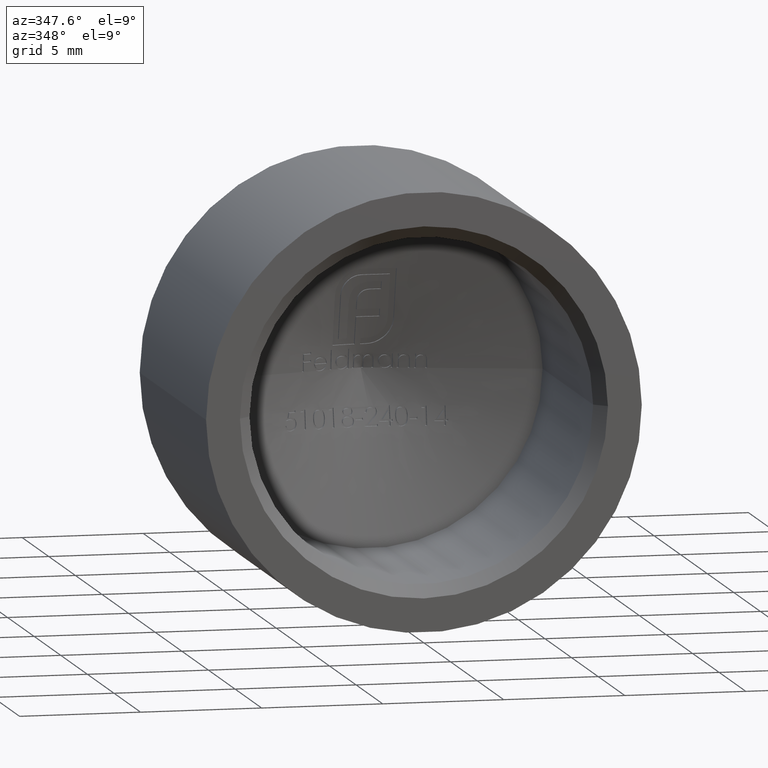
[diagram: clean part render]
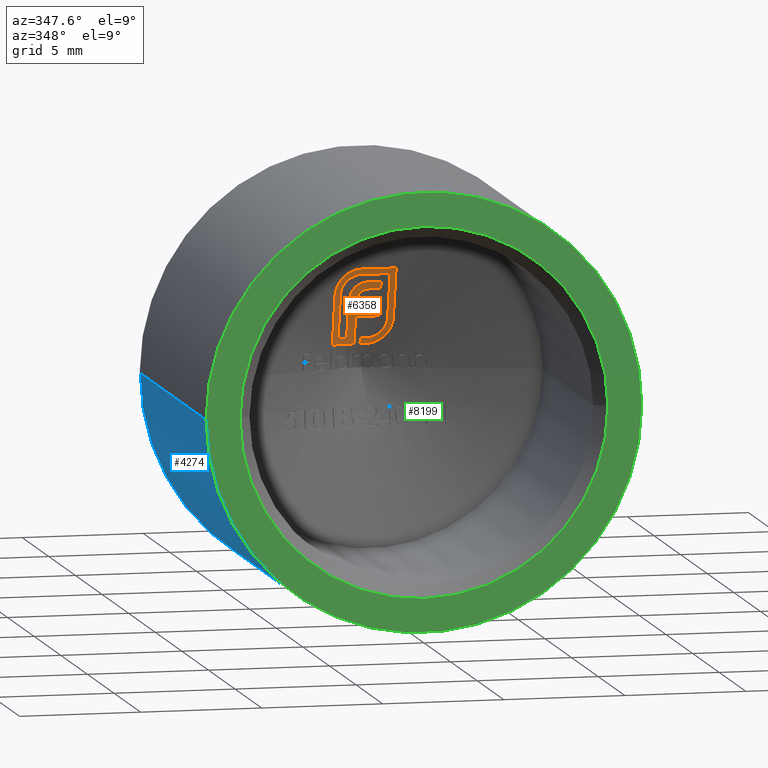
[diagram: same view with three faces highlighted in distinct colors, each labeled with its STEP entity id]
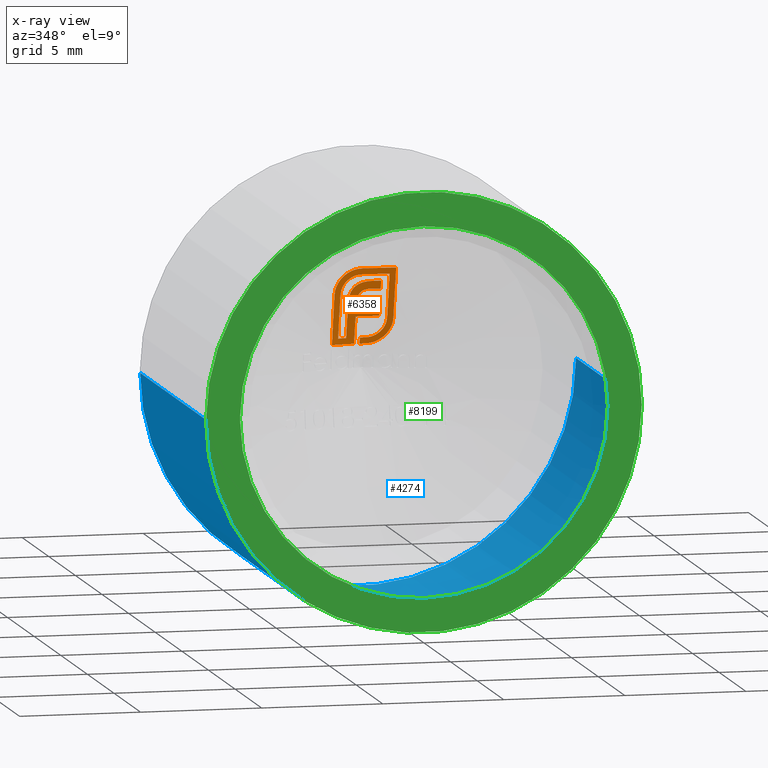
[diagram: x-ray of the same camera — body ghosted, the three highlighted faces saturated]
A machine part, auxiliary view with three faces highlighted in distinct colors.
The next image is the same camera in x-ray (body ghosted, the three faces saturated) — at least one of them is partly hidden behind the body in this view.
Their STEP definitions:

[orange] entity #6358 — the highlighted conical surface has half-angle 75 deg.
#171 = B_SPLINE_CURVE_WITH_KNOTS ( 'NONE', 3,
 ( #3192, #11892, #880, #12803, #12891, #10779, #9701, #4335, #13995, #13903, #3099, #3144, #4149 ),
 .UNSPECIFIED., .F., .F.,
 ( 4, 3, 3, 3, 4 ),
 ( 0.000000000000000000, 7.394270754469971403E-05, 0.0001479491369219821642, 0.0002219066602573538220, 0.0002962628291150000621 ),
 .UNSPECIFIED. ) ;
#200 = CARTESIAN_POINT ( 'NONE',  ( 0.7358328579985032869, 11.55963200449526518, 1.494407766718016894 ) ) ;
#257 = CARTESIAN_POINT ( 'NONE',  ( -0.2780241077777938496, 11.19453533780558452, 3.015514259386824936 ) ) ;
#307 = CARTESIAN_POINT ( 'NONE',  ( -0.2344904513369464039, 11.17090646651796426, 3.107673078830214486 ) ) ;
#456 = CARTESIAN_POINT ( 'NONE',  ( 0.9830367413575101798, 11.07726358621820495, 3.327015815586091829 ) ) ;
#551 = CARTESIAN_POINT ( 'NONE',  ( -0.5409036448911598294, 10.96078487050192152, 3.863343453792511539 ) ) ;
#617 = EDGE_CURVE ( 'NONE', #6517, #13425, #9987, .T. ) ;
#620 = CARTESIAN_POINT ( 'NONE',  ( -1.000328928078029644, 11.11559488663462325, 3.168818495778114031 ) ) ;
#641 = CARTESIAN_POINT ( 'NONE',  ( -1.253355793030608956, 11.27882352922078724, 2.413896320268902329 ) ) ;
#649 = CARTESIAN_POINT ( 'NONE',  ( -1.063250877032375641, 10.96826923492298711, 3.724089635997008596 ) ) ;
#748 = CARTESIAN_POINT ( 'NONE',  ( -0.009631320130870342847, 11.12483853501321107, 3.288401663094821625 ) ) ;
#793 = CARTESIAN_POINT ( 'NONE',  ( 0.2157415709314984553, 11.11367724497087117, 3.323074415565955064 ) ) ;
#797 = CARTESIAN_POINT ( 'NONE',  ( 0.5695736664563785245, 11.61044009762391305, 1.362100794153951355 ) ) ;
#829 = VERTEX_POINT ( 'NONE', #8804 ) ;
#848 = CARTESIAN_POINT ( 'NONE',  ( -0.5833112936472754084, 11.13726389916200077, 3.189270249338582275 ) ) ;
#853 = CARTESIAN_POINT ( 'NONE',  ( -0.07042903317517616724, 11.13147777088820334, 3.262999664591883509 ) ) ;
#880 = CARTESIAN_POINT ( 'NONE',  ( -0.5201401753285617158, 10.88788672903398691, 4.140256207671854760 ) ) ;
#899 = ORIENTED_EDGE ( 'NONE', *, *, #1071, .T. ) ;
#903 = CARTESIAN_POINT ( 'NONE',  ( 1.216546189738427985, 11.40614998829992821, 1.879242214890158413 ) ) ;
#905 = CARTESIAN_POINT ( 'NONE',  ( -0.3126968602489277882, 11.33448107199701838, 2.486433740197681708 ) ) ;
#984 = CARTESIAN_POINT ( 'NONE',  ( -0.4295568778368224483, 11.08168988161551205, 3.422598056918283227 ) ) ;
#1054 = CARTESIAN_POINT ( 'NONE',  ( -1.253355793030609178, 11.10626539894526310, 3.115037900739153098 ) ) ;
#1059 = EDGE_CURVE ( 'NONE', #4690, #3408, #4718, .T. ) ;
#1066 = CARTESIAN_POINT ( 'NONE',  ( -0.6594243849602658969, 11.62687893752128687, 1.251698499420092814 ) ) ;
#1071 = EDGE_CURVE ( 'NONE', #3395, #2424, #5814, .T. ) ;
#1079 = EDGE_CURVE ( 'NONE', #4821, #829, #9102, .T. ) ;
#1092 = EDGE_CURVE ( 'NONE', #12097, #8981, #1530, .T. ) ;
#1093 = CARTESIAN_POINT ( 'NONE',  ( 0.6536455928817447303, 11.40088233175097443, 2.161537207782977088 ) ) ;
#1140 = AXIS2_PLACEMENT_3D ( 'NONE', #2224, #14108, #8799 ) ;
#1168 = CARTESIAN_POINT ( 'NONE',  ( 0.2157415709314984553, 11.11367724497087117, 3.323074415565955064 ) ) ;
#1175 = B_SPLINE_CURVE_WITH_KNOTS ( 'NONE', 3,
 ( #11850, #1966, #2153, #14086, #11761, #3052 ),
 .UNSPECIFIED., .F., .F.,
 ( 4, 2, 4 ),
 ( 0.008814146256615622982, 0.009748831227761014379, 0.01068351619890640404 ),
 .UNSPECIFIED. ) ;
#1287 = CARTESIAN_POINT ( 'NONE',  ( -0.4732188624301019164, 10.88538192048867437, 4.155220474873162928 ) ) ;
#1335 = VERTEX_POINT ( 'NONE', #13023 ) ;
#1336 = CARTESIAN_POINT ( 'NONE',  ( 0.6536455928817419547, 11.06961999182477818, 3.432883064817597418 ) ) ;
#1374 = CARTESIAN_POINT ( 'NONE',  ( 0.6536455928817447303, 11.40088233175097443, 2.161537207782977088 ) ) ;
#1408 = VERTEX_POINT ( 'NONE', #13171 ) ;
#1515 = CARTESIAN_POINT ( 'NONE',  ( 0.6436795122646929990, 11.65968738854438946, 1.120860829148131232 ) ) ;
#1530 = B_SPLINE_CURVE_WITH_KNOTS ( 'NONE', 3,
 ( #2064, #9604, #13904, #7392 ),
 .UNSPECIFIED., .F., .F.,
 ( 4, 4 ),
 ( 0.003612330766010908752, 0.005013608497698937745 ),
 .UNSPECIFIED. ) ;
#1537 = CARTESIAN_POINT ( 'NONE',  ( -1.253355793030609178, 11.10626539894526310, 3.115037900739153098 ) ) ;
#1561 = CARTESIAN_POINT ( 'NONE',  ( 0.6838237292918027954, 11.64903198048279620, 1.143185625945607464 ) ) ;
#1595 = CARTESIAN_POINT ( 'NONE',  ( -0.1695112343033200186, 10.94734729292533970, 3.947183960046360962 ) ) ;
#1596 = B_SPLINE_CURVE_WITH_KNOTS ( 'NONE', 3,
 ( #13064, #5368, #6383, #4319, #14023, #10853, #8608, #1054 ),
 .UNSPECIFIED., .F., .F.,
 ( 4, 2, 2, 4 ),
 ( 0.000000000000000000, 0.0001426175658978912303, 0.0002852351317957824606, 0.0005704702635915649212 ),
 .UNSPECIFIED. ) ;
#1659 = CARTESIAN_POINT ( 'NONE',  ( -0.8950150176004723068, 11.03082380832896447, 3.527745472197443277 ) ) ;
#1677 = CARTESIAN_POINT ( 'NONE',  ( -1.253355793030609400, 11.51686347004377886, 1.355884771059718163 ) ) ;
#1691 = EDGE_CURVE ( 'NONE', #13703, #9571, #12743, .T. ) ;
#1707 = ORIENTED_EDGE ( 'NONE', *, *, #1059, .T. ) ;
#1724 = CARTESIAN_POINT ( 'NONE',  ( -1.253355793030608956, 11.57633638178148772, 1.000000000000000444 ) ) ;
#1777 = CARTESIAN_POINT ( 'NONE',  ( 0.9830367413575117341, 10.91601549010545291, 3.947183960046375617 ) ) ;
#1778 = B_SPLINE_CURVE_WITH_KNOTS ( 'NONE', 3,
 ( #6173, #2580, #2966, #797, #12369, #3682, #13434, #5929, #4786, #4066 ),
 .UNSPECIFIED., .F., .F.,
 ( 4, 2, 2, 2, 4 ),
 ( 0.000000000000000000, 0.0001633988152686584739, 0.0003267976305373169479, 0.0004901964458059753947, 0.0006535952610746338957 ),
 .UNSPECIFIED. ) ;
#1832 = CARTESIAN_POINT ( 'NONE',  ( 0.04523702159074270007, 11.12039478412948057, 3.304690467383331942 ) ) ;
#1897 = CARTESIAN_POINT ( 'NONE',  ( 0.2767399317603446707, 11.02448652352896730, 3.652465564041724289 ) ) ;
#1966 = CARTESIAN_POINT ( 'NONE',  ( -1.001657293610527688, 11.51103557972139768, 1.564163883993461068 ) ) ;
#2064 = CARTESIAN_POINT ( 'NONE',  ( 1.234735240777593113, 10.83324338400742626, 4.198882459466442008 ) ) ;
#2086 = CARTESIAN_POINT ( 'NONE',  ( 0.6536455928817421768, 11.37309675283809973, 2.269871985086451716 ) ) ;
#2092 = CARTESIAN_POINT ( 'NONE',  ( 1.095410779188357608, 11.49589571655640441, 1.556862192788256660 ) ) ;
#2093 = CARTESIAN_POINT ( 'NONE',  ( -1.253355793030609178, 11.10626539894526310, 3.115037900739153098 ) ) ;
#2119 = B_SPLINE_CURVE_WITH_KNOTS ( 'NONE', 3,
 ( #10057, #13198, #4503, #6746 ),
 .UNSPECIFIED., .F., .F.,
 ( 4, 4 ),
 ( 0.003221757652406997789, 0.003657089916898708087 ),
 .UNSPECIFIED. ) ;
#2153 = CARTESIAN_POINT ( 'NONE',  ( -1.001657293610527688, 11.43737628458131717, 1.875185669740780048 ) ) ;
#2207 = ORIENTED_EDGE ( 'NONE', *, *, #12178, .T. ) ;
#2224 = CARTESIAN_POINT ( 'NONE',  ( -4.670729433563786744E-17, 11.99903184888984597, 0.000000000000000000 ) ) ;
#2232 = VERTEX_POINT ( 'NONE', #7391 ) ;
#2269 = CARTESIAN_POINT ( 'NONE',  ( -0.005042777244458447432, 11.73882061120169951, 1.000000000000000000 ) ) ;
#2270 = ORIENTED_EDGE ( 'NONE', *, *, #3642, .T. ) ;
#2274 = CARTESIAN_POINT ( 'NONE',  ( -0.9414907658093416565, 11.64165708409980837, 1.000000000000000000 ) ) ;
#2313 = B_SPLINE_CURVE_WITH_KNOTS ( 'NONE', 3,
 ( #7378, #9826, #14120, #11968, #6430, #11925 ),
 .UNSPECIFIED., .F., .F.,
 ( 4, 2, 4 ),
 ( 0.000000000000000000, 0.0002125381827805550858, 0.0004250763655611101716 ),
 .UNSPECIFIED. ) ;
#2329 = CARTESIAN_POINT ( 'NONE',  ( 1.191073256184313589, 11.43205855722340125, 1.780136930600507039 ) ) ;
#2412 = CARTESIAN_POINT ( 'NONE',  ( 0.6536455928817420657, 11.09848993428822084, 3.323074415565958173 ) ) ;
#2424 = VERTEX_POINT ( 'NONE', #1168 ) ;
#2480 = FACE_OUTER_BOUND ( 'NONE', #9654, .T. ) ;
#2512 = CARTESIAN_POINT ( 'NONE',  ( -0.3020362907366494487, 11.21938806285337442, 2.919976621754199808 ) ) ;
#2527 = CARTESIAN_POINT ( 'NONE',  ( 0.9830367413575127333, 11.23768836549518291, 2.706542056475766067 ) ) ;
#2575 = B_SPLINE_CURVE_WITH_KNOTS ( 'NONE', 3,
 ( #11731, #2269, #3260, #10931 ),
 .UNSPECIFIED., .F., .F.,
 ( 4, 4 ),
 ( 0.0009090622911687312475, 0.001141663783262279047 ),
 .UNSPECIFIED. ) ;
#2580 = CARTESIAN_POINT ( 'NONE',  ( 0.6972140229356443841, 11.57312043525086231, 1.457312302584973462 ) ) ;
#2714 = CARTESIAN_POINT ( 'NONE',  ( 1.234735240777593113, 11.35694442021383210, 2.083844558727288909 ) ) ;
#2750 = CARTESIAN_POINT ( 'NONE',  ( -0.7194767096979467480, 10.98612677247799674, 3.737760433095647095 ) ) ;
#2774 = CARTESIAN_POINT ( 'NONE',  ( -0.8333154875042055876, 11.01099216609587650, 3.618813278708321146 ) ) ;
#2775 = VERTEX_POINT ( 'NONE', #2093 ) ;
#2882 = CARTESIAN_POINT ( 'NONE',  ( -0.6594243849602658969, 11.62687893752128687, 1.251698499420092814 ) ) ;
#2898 = CARTESIAN_POINT ( 'NONE',  ( 0.7610570878540338091, 11.62733342296852612, 1.190729704659291288 ) ) ;
#2913 = CARTESIAN_POINT ( 'NONE',  ( 0.1393186128296175497, 11.11540314063062596, 3.320919855898267326 ) ) ;
#2939 = CARTESIAN_POINT ( 'NONE',  ( 0.1508906820503039259, 11.73498452615122112, 1.000000000000000000 ) ) ;
#2966 = CARTESIAN_POINT ( 'NONE',  ( 0.6572255329088199094, 11.58626003900088186, 1.422091982115506914 ) ) ;
#2981 = CARTESIAN_POINT ( 'NONE',  ( -0.3126968602489276217, 11.25486714959354373, 2.785646752263382986 ) ) ;
#3052 = CARTESIAN_POINT ( 'NONE',  ( -1.001657293610527688, 11.12920459761298630, 3.115037900739153098 ) ) ;
#3078 = CARTESIAN_POINT ( 'NONE',  ( 0.6536455928817421768, 11.34514872029552102, 2.378167764104723414 ) ) ;
#3099 = CARTESIAN_POINT ( 'NONE',  ( -0.6994766181561332674, 10.90219496764668961, 4.059579039689780622 ) ) ;
#3144 = CARTESIAN_POINT ( 'NONE',  ( -0.7205523359809939965, 10.90461486248515932, 4.046716578263177766 ) ) ;
#3168 = CARTESIAN_POINT ( 'NONE',  ( 0.1508906820503039259, 11.66814711659315051, 1.251698499420081268 ) ) ;
#3189 = CARTESIAN_POINT ( 'NONE',  ( 0.9830367413575151758, 11.38859139670818443, 2.083844558727288909 ) ) ;
#3192 = CARTESIAN_POINT ( 'NONE',  ( -0.4732188624301019164, 10.88538192048867437, 4.155220474873162928 ) ) ;
#3219 = VERTEX_POINT ( 'NONE', #13495 ) ;
#3260 = CARTESIAN_POINT ( 'NONE',  ( 0.07313349949342515255, 11.73809314033903206, 1.000000000000000000 ) ) ;
#3296 = ORIENTED_EDGE ( 'NONE', *, *, #14003, .T. ) ;
#3367 = ORIENTED_EDGE ( 'NONE', *, *, #1079, .T. ) ;
#3373 = B_SPLINE_CURVE_WITH_KNOTS ( 'NONE', 3,
 ( #11255, #2274, #8064, #13158 ),
 .UNSPECIFIED., .F., .F.,
 ( 4, 4 ),
 ( 0.001271126619704009272, 0.002226848258252503605 ),
 .UNSPECIFIED. ) ;
#3395 = VERTEX_POINT ( 'NONE', #10746 ) ;
#3408 = VERTEX_POINT ( 'NONE', #4116 ) ;
#3469 = CARTESIAN_POINT ( 'NONE',  ( 0.6536455928817419547, 11.04070037837364282, 3.542679435247237496 ) ) ;
#3528 = CARTESIAN_POINT ( 'NONE',  ( 1.234735240777593113, 10.83324338400742626, 4.198882459466442008 ) ) ;
#3622 = B_SPLINE_CURVE_WITH_KNOTS ( 'NONE', 3,
 ( #9738, #4430, #5380, #13024, #5526, #13124, #6627, #10769 ),
 .UNSPECIFIED., .F., .F.,
 ( 4, 2, 2, 4 ),
 ( 0.000000000000000000, 0.0001743240816599191763, 0.0002614861224898784933, 0.0003486481633198378104 ),
 .UNSPECIFIED. ) ;
#3642 = EDGE_CURVE ( 'NONE', #4273, #3768, #7037, .T. ) ;
#3682 = CARTESIAN_POINT ( 'NONE',  ( 0.4222814163112355024, 11.64157681859232518, 1.293321540432275096 ) ) ;
#3768 = VERTEX_POINT ( 'NONE', #1777 ) ;
#3773 = ORIENTED_EDGE ( 'NONE', *, *, #9480, .T. ) ;
#3791 = CARTESIAN_POINT ( 'NONE',  ( 0.1508906820503039259, 11.73498452615122112, 1.000000000000000000 ) ) ;
#3795 = CARTESIAN_POINT ( 'NONE',  ( -0.9775648025121621565, 11.07681966626903680, 3.327068281234598413 ) ) ;
#3806 = B_SPLINE_CURVE_WITH_KNOTS ( 'NONE', 3,
 ( #1537, #13516, #641, #7099, #1677, #1724 ),
 .UNSPECIFIED., .F., .F.,
 ( 4, 2, 4 ),
 ( 0.007072878041311798925, 0.008155941024482546084, 0.009239004007653293243 ),
 .UNSPECIFIED. ) ;
#3878 = CARTESIAN_POINT ( 'NONE',  ( 1.234735240777593113, 11.35694442021383210, 2.083844558727288909 ) ) ;
#3908 = CARTESIAN_POINT ( 'NONE',  ( 0.9333722334690592870, 11.56922292851153067, 1.336277131181357936 ) ) ;
#3912 = ORIENTED_EDGE ( 'NONE', *, *, #6200, .T. ) ;
#3933 = CARTESIAN_POINT ( 'NONE',  ( -0.7589480263125921722, 10.99391832667734370, 3.699980076687352515 ) ) ;
#3944 = CARTESIAN_POINT ( 'NONE',  ( -0.1876255156817178416, 11.15506987874544720, 3.170075825676205827 ) ) ;
#4010 = CARTESIAN_POINT ( 'NONE',  ( 0.3326131791512554337, 11.33896257387996265, 2.486433740197671938 ) ) ;
#4023 = B_SPLINE_CURVE_WITH_KNOTS ( 'NONE', 3,
 ( #905, #7411, #7458, #2981 ),
 .UNSPECIFIED., .F., .F.,
 ( 4, 4 ),
 ( 0.002575680327349181079, 0.002884701948153508763 ),
 .UNSPECIFIED. ) ;
#4033 = CARTESIAN_POINT ( 'NONE',  ( -0.6594243849602646756, 11.50977869916792606, 1.745660019775298055 ) ) ;
#4066 = CARTESIAN_POINT ( 'NONE',  ( 0.1508906820503039259, 11.66814711659315051, 1.251698499420081268 ) ) ;
#4081 = CARTESIAN_POINT ( 'NONE',  ( -0.6594243849602641205, 11.25365152987183315, 2.729143007495610007 ) ) ;
#4097 = CARTESIAN_POINT ( 'NONE',  ( 0.9643195275555330737, 11.55720442046794538, 1.369329345848671275 ) ) ;
#4099 = EDGE_CURVE ( 'NONE', #9669, #4690, #6849, .T. ) ;
#4116 = CARTESIAN_POINT ( 'NONE',  ( -0.3126968602489277882, 11.33448107199701838, 2.486433740197681708 ) ) ;
#4149 = CARTESIAN_POINT ( 'NONE',  ( -0.7416116500770253417, 10.90698113677847836, 4.033865841224195670 ) ) ;
#4218 = B_SPLINE_CURVE_WITH_KNOTS ( 'NONE', 3,
 ( #3189, #8622, #5252, #12979, #5335, #13942, #10724, #5205, #8481, #6485 ),
 .UNSPECIFIED., .F., .F.,
 ( 4, 2, 2, 2, 4 ),
 ( 4.848699518061080308E-19, 0.0001678954194340044192, 0.0003357908388680083504, 0.0005036862583020122004, 0.0006715816777360161588 ),
 .UNSPECIFIED. ) ;
#4234 = EDGE_CURVE ( 'NONE', #11062, #9159, #3373, .T. ) ;
#4273 = VERTEX_POINT ( 'NONE', #10243 ) ;
#4276 = CARTESIAN_POINT ( 'NONE',  ( 1.159559791715489174, 11.45727515158493404, 1.687826448441899219 ) ) ;
#4287 = VERTEX_POINT ( 'NONE', #9322 ) ;
#4307 = B_SPLINE_CURVE_WITH_KNOTS ( 'NONE', 3,
 ( #11798, #11615, #10639, #10727 ),
 .UNSPECIFIED., .F., .F.,
 ( 4, 4 ),
 ( 0.001361088703140514444, 0.001704217927187385087 ),
 .UNSPECIFIED. ) ;
#4319 = CARTESIAN_POINT ( 'NONE',  ( -1.191503295552242658, 11.02041565327468398, 3.479926773889134850 ) ) ;
#4330 = EDGE_CURVE ( 'NONE', #9571, #12097, #10946, .T. ) ;
#4335 = CARTESIAN_POINT ( 'NONE',  ( -0.6338375515431503571, 10.89609434362156293, 4.093385939494098125 ) ) ;
#4392 = VERTEX_POINT ( 'NONE', #9465 ) ;
#4421 = CARTESIAN_POINT ( 'NONE',  ( -0.2208835631891407358, 10.87963170589815576, 4.198046951746182920 ) ) ;
#4430 = CARTESIAN_POINT ( 'NONE',  ( -0.1897638096798709428, 11.04615878960618502, 3.577454333714891188 ) ) ;
#4498 = ORIENTED_EDGE ( 'NONE', *, *, #5370, .T. ) ;
#4503 = CARTESIAN_POINT ( 'NONE',  ( 0.5078777310586095606, 11.10602823439261044, 3.323074415565955952 ) ) ;
#4520 = CARTESIAN_POINT ( 'NONE',  ( -0.3739584251523249137, 10.88135714502183049, 4.180722125328592220 ) ) ;
#4609 = CARTESIAN_POINT ( 'NONE',  ( -1.253355793030608956, 11.57633638178148772, 1.000000000000000444 ) ) ;
#4634 = EDGE_CURVE ( 'NONE', #3768, #12589, #5575, .T. ) ;
#4668 = CARTESIAN_POINT ( 'NONE',  ( -0.2780241077777938496, 11.19453533780558452, 3.015514259386824936 ) ) ;
#4690 = VERTEX_POINT ( 'NONE', #6875 ) ;
#4709 = ORIENTED_EDGE ( 'NONE', *, *, #6968, .T. ) ;
#4711 = CARTESIAN_POINT ( 'NONE',  ( 0.07310270934407334109, 11.67064168099614641, 1.251698499420082156 ) ) ;
#4717 = CARTESIAN_POINT ( 'NONE',  ( -0.2128619613932888899, 11.16274412912283687, 3.139742843415217255 ) ) ;
#4718 = B_SPLINE_CURVE_WITH_KNOTS ( 'NONE', 3,
 ( #10553, #4010, #12714, #13763 ),
 .UNSPECIFIED., .F., .F.,
 ( 4, 4 ),
 ( 0.002062015219854618393, 0.003025843354104204141 ),
 .UNSPECIFIED. ) ;
#4724 = ORIENTED_EDGE ( 'NONE', *, *, #12512, .T. ) ;
#4786 = CARTESIAN_POINT ( 'NONE',  ( 0.2063026337284232237, 11.66600602834832223, 1.253067159001559405 ) ) ;
#4796 = CARTESIAN_POINT ( 'NONE',  ( 0.2454784319189337594, 11.73096279831533906, 1.000906786646812652 ) ) ;
#4805 = CARTESIAN_POINT ( 'NONE',  ( -0.08282935312548596329, 11.73710010326084330, 1.000000000000000000 ) ) ;
#4821 = VERTEX_POINT ( 'NONE', #5206 ) ;
#4839 = CARTESIAN_POINT ( 'NONE',  ( 0.6032635652166027374, 11.67012618081975361, 1.099034054454452791 ) ) ;
#4843 = CARTESIAN_POINT ( 'NONE',  ( -1.001657293610527688, 11.12920459761298630, 3.115037900739153098 ) ) ;
#4877 = CARTESIAN_POINT ( 'NONE',  ( 0.2141195928836897022, 10.95175768259643867, 3.947183960046355633 ) ) ;
#4937 = B_SPLINE_CURVE_WITH_KNOTS ( 'NONE', 3,
 ( #13662, #9351, #2898, #10636, #10488, #3908, #4097, #13798, #6205, #5007 ),
 .UNSPECIFIED., .F., .F.,
 ( 4, 2, 2, 2, 4 ),
 ( 0.000000000000000000, 0.0001396142354396738691, 0.0002792284708793477382, 0.0004188427063190216073, 0.0005584569417586954763 ),
 .UNSPECIFIED. ) ;
#4975 = CARTESIAN_POINT ( 'NONE',  ( -0.4295568778368224483, 11.08168988161551205, 3.422598056918283227 ) ) ;
#5007 = CARTESIAN_POINT ( 'NONE',  ( 1.069718622535345887, 11.50889901795718728, 1.515596671005931873 ) ) ;
#5013 = CARTESIAN_POINT ( 'NONE',  ( -0.7791248126306461463, 10.91178977926166205, 4.008722319650259713 ) ) ;
#5069 = B_SPLINE_CURVE_WITH_KNOTS ( 'NONE', 3,
 ( #257, #10168, #6821, #6955, #307, #9151, #4717, #5905, #3944, #12453 ),
 .UNSPECIFIED., .F., .F.,
 ( 4, 3, 3, 4 ),
 ( 0.000000000000000000, 8.496147484592449131E-05, 0.0001439515570902233084, 0.0002040288892915694257 ),
 .UNSPECIFIED. ) ;
#5084 = ORIENTED_EDGE ( 'NONE', *, *, #12702, .T. ) ;
#5093 = CARTESIAN_POINT ( 'NONE',  ( 0.6536455928817419547, 11.01174331917845173, 3.652465564041724289 ) ) ;
#5118 = CARTESIAN_POINT ( 'NONE',  ( -1.010547422800207373, 10.95328357540009279, 3.796636825714021946 ) ) ;
#5124 = CARTESIAN_POINT ( 'NONE',  ( 0.1776078098827213458, 11.11448563490041153, 3.322526842631909894 ) ) ;
#5144 = CARTESIAN_POINT ( 'NONE',  ( 0.5281485726114224510, 11.01766706757288183, 3.652465564041724289 ) ) ;
#5158 = CARTESIAN_POINT ( 'NONE',  ( -0.2794471925631212827, 10.94701359479049074, 3.942552707545178059 ) ) ;
#5177 = CARTESIAN_POINT ( 'NONE',  ( -0.08282935312548586615, 11.66984175436771842, 1.251698499420079713 ) ) ;
#5184 = EDGE_CURVE ( 'NONE', #1335, #9943, #7839, .T. ) ;
#5198 = EDGE_CURVE ( 'NONE', #5945, #8554, #12205, .T. ) ;
#5205 = CARTESIAN_POINT ( 'NONE',  ( 0.8104445601505764207, 11.53127292150096217, 1.575350805202567539 ) ) ;
#5206 = CARTESIAN_POINT ( 'NONE',  ( -0.7416116500770253417, 10.90698113677847836, 4.033865841224195670 ) ) ;
#5252 = CARTESIAN_POINT ( 'NONE',  ( 0.9783879206376983051, 11.41561590353643751, 1.974121132067615303 ) ) ;
#5311 = CARTESIAN_POINT ( 'NONE',  ( -0.6029206401924908088, 11.15006066858829037, 3.136868893035792638 ) ) ;
#5335 = CARTESIAN_POINT ( 'NONE',  ( 0.9423001769583337905, 11.45787354071364028, 1.815547615487367539 ) ) ;
#5351 = CARTESIAN_POINT ( 'NONE',  ( -0.5028243111960097877, 11.10169954403443882, 3.337163526508284406 ) ) ;
#5368 = CARTESIAN_POINT ( 'NONE',  ( -1.132934448651457204, 10.99295176482608127, 3.607036454020406957 ) ) ;
#5370 = EDGE_CURVE ( 'NONE', #6596, #7398, #5757, .T. ) ;
#5380 = CARTESIAN_POINT ( 'NONE',  ( -0.2437205971987776720, 11.05102623137048568, 3.555925877334397356 ) ) ;
#5391 = ORIENTED_EDGE ( 'NONE', *, *, #9205, .T. ) ;
#5517 = CARTESIAN_POINT ( 'NONE',  ( -0.3126968602489311744, 11.42075563887443579, 2.161537207782977088 ) ) ;
#5521 = CARTESIAN_POINT ( 'NONE',  ( -0.2722504242548106079, 10.87954333535072671, 4.195358173075553587 ) ) ;
#5526 = CARTESIAN_POINT ( 'NONE',  ( -0.3427629742975554228, 11.06452460751332545, 3.496835373091423449 ) ) ;
#5575 = B_SPLINE_CURVE_WITH_KNOTS ( 'NONE', 3,
 ( #5917, #456, #2527, #13424 ),
 .UNSPECIFIED., .F., .F.,
 ( 4, 4 ),
 ( 0.01299314604642829406, 0.01491551843992628204 ),
 .UNSPECIFIED. ) ;
#5636 = ORIENTED_EDGE ( 'NONE', *, *, #7090, .T. ) ;
#5676 = CARTESIAN_POINT ( 'NONE',  ( -0.2903744545921533304, 11.20428995722362053, 2.977781382754815187 ) ) ;
#5757 = B_SPLINE_CURVE_WITH_KNOTS ( 'NONE', 3,
 ( #8903, #9821, #13010, #11918 ),
 .UNSPECIFIED., .F., .F.,
 ( 4, 4 ),
 ( 0.0009594571082551295099, 0.001219987110466942302 ),
 .UNSPECIFIED. ) ;
#5814 = B_SPLINE_CURVE_WITH_KNOTS ( 'NONE', 3,
 ( #748, #13813, #7300, #1832, #9458, #7247, #11628, #2913, #5124, #793 ),
 .UNSPECIFIED., .F., .F.,
 ( 4, 3, 3, 4 ),
 ( 0.000000000000000000, 5.740737749057825981E-05, 0.0001149061396178375420, 0.0002296373589773763996 ),
 .UNSPECIFIED. ) ;
#5887 = CARTESIAN_POINT ( 'NONE',  ( -0.6029206401924908088, 11.15006066858829037, 3.136868893035792638 ) ) ;
#5905 = CARTESIAN_POINT ( 'NONE',  ( -0.2012293303742087314, 11.15871281592192865, 3.155611090936484953 ) ) ;
#5917 = CARTESIAN_POINT ( 'NONE',  ( 0.9830367413575117341, 10.91601549010545291, 3.947183960046375617 ) ) ;
#5929 = CARTESIAN_POINT ( 'NONE',  ( 0.2613811837088988455, 11.66228214939819630, 1.256735633952411835 ) ) ;
#5934 = CARTESIAN_POINT ( 'NONE',  ( 1.234735240777593113, 11.19381735056456151, 2.791489715243841818 ) ) ;
#5944 = CARTESIAN_POINT ( 'NONE',  ( -0.9628009550952341122, 11.06466675777944886, 3.378633631224089218 ) ) ;
#5945 = VERTEX_POINT ( 'NONE', #12445 ) ;
#5975 = ORIENTED_EDGE ( 'NONE', *, *, #1092, .T. ) ;
#5988 = CARTESIAN_POINT ( 'NONE',  ( -0.9969534570003881768, 11.10220755673439719, 3.222261664027819439 ) ) ;
#6007 = CARTESIAN_POINT ( 'NONE',  ( -0.7589480263125921722, 10.99391832667734370, 3.699980076687352515 ) ) ;
#6011 = CARTESIAN_POINT ( 'NONE',  ( -0.3871638123832211176, 10.95013781600105141, 3.921720599648663264 ) ) ;
#6021 = CARTESIAN_POINT ( 'NONE',  ( 0.5999158856444375409, 10.94082415071121339, 3.947183960046366291 ) ) ;
#6038 = CARTESIAN_POINT ( 'NONE',  ( 1.191073256184313589, 11.43205855722340125, 1.780136930600507039 ) ) ;
#6062 = VERTEX_POINT ( 'NONE', #9144 ) ;
#6150 = VERTEX_POINT ( 'NONE', #12538 ) ;
#6159 = VERTEX_POINT ( 'NONE', #9431 ) ;
#6173 = CARTESIAN_POINT ( 'NONE',  ( 0.7358328579985032869, 11.55963200449526518, 1.494407766718016894 ) ) ;
#6200 = EDGE_CURVE ( 'NONE', #3408, #1408, #4023, .T. ) ;
#6205 = CARTESIAN_POINT ( 'NONE',  ( 1.044926931108844714, 11.52097962016032540, 1.477910494715697576 ) ) ;
#6273 = CARTESIAN_POINT ( 'NONE',  ( -0.4489703813316964776, 11.08649265394668681, 3.402096736423489087 ) ) ;
#6358 = ADVANCED_FACE ( 'NONE', ( #2480 ), #12336, .F. ) ;
#6362 = VERTEX_POINT ( 'NONE', #3168 ) ;
#6383 = CARTESIAN_POINT ( 'NONE',  ( -1.155132525128590659, 11.00165633408423105, 3.565831961019515273 ) ) ;
#6400 = ORIENTED_EDGE ( 'NONE', *, *, #4634, .T. ) ;
#6430 = CARTESIAN_POINT ( 'NONE',  ( -0.6579740865144871886, 11.23582321477269907, 2.797944312182824245 ) ) ;
#6462 = CARTESIAN_POINT ( 'NONE',  ( -0.1502676403498377500, 11.14585363008404073, 3.206564011650680612 ) ) ;
#6477 = CARTESIAN_POINT ( 'NONE',  ( 0.9830367413575151758, 11.38859139670818443, 2.083844558727288909 ) ) ;
#6485 = CARTESIAN_POINT ( 'NONE',  ( 0.7358328579985032869, 11.55963200449526518, 1.494407766718016894 ) ) ;
#6517 = VERTEX_POINT ( 'NONE', #8300 ) ;
#6555 = CARTESIAN_POINT ( 'NONE',  ( 0.1374070034602783152, 11.02769944559267579, 3.649007417120962771 ) ) ;
#6596 = VERTEX_POINT ( 'NONE', #5177 ) ;
#6624 = EDGE_CURVE ( 'NONE', #7750, #9043, #9517, .T. ) ;
#6627 = CARTESIAN_POINT ( 'NONE',  ( -0.4087168994734112215, 11.07716718993841454, 3.442224933150935140 ) ) ;
#6656 = CARTESIAN_POINT ( 'NONE',  ( -0.0005602505790655533044, 11.03320029914861244, 3.630572868164524625 ) ) ;
#6673 = CARTESIAN_POINT ( 'NONE',  ( 0.6536455928817419547, 11.01174331917845173, 3.652465564041724289 ) ) ;
#6746 = CARTESIAN_POINT ( 'NONE',  ( 0.6536455928817420657, 11.09848993428822084, 3.323074415565958173 ) ) ;
#6821 = CARTESIAN_POINT ( 'NONE',  ( -0.2581252217953438066, 11.18124350451595994, 3.067107278088160083 ) ) ;
#6849 = B_SPLINE_CURVE_WITH_KNOTS ( 'NONE', 3,
 ( #1093, #2086, #3078, #10755 ),
 .UNSPECIFIED., .F., .F.,
 ( 4, 4 ),
 ( 0.002248729865330446279, 0.002583443778888270658 ),
 .UNSPECIFIED. ) ;
#6875 = CARTESIAN_POINT ( 'NONE',  ( 0.6536455928817421768, 11.31709221494051931, 2.486433740197674602 ) ) ;
#6939 = CARTESIAN_POINT ( 'NONE',  ( 0.5186430678208878708, 11.68915671471756390, 1.062929801685801090 ) ) ;
#6955 = CARTESIAN_POINT ( 'NONE',  ( -0.2442017237169123445, 11.17515384398995337, 3.091005028636498952 ) ) ;
#6968 = EDGE_CURVE ( 'NONE', #3219, #4287, #4937, .T. ) ;
#6976 = ORIENTED_EDGE ( 'NONE', *, *, #5184, .T. ) ;
#7037 = B_SPLINE_CURVE_WITH_KNOTS ( 'NONE', 3,
 ( #1595, #4877, #6021, #12188 ),
 .UNSPECIFIED., .F., .F.,
 ( 4, 4 ),
 ( 0.003500316867217303021, 0.004647467028699450546 ),
 .UNSPECIFIED. ) ;
#7066 = B_SPLINE_CURVE_WITH_KNOTS ( 'NONE', 3,
 ( #11137, #4711, #12299, #13406 ),
 .UNSPECIFIED., .F., .F.,
 ( 4, 4 ),
 ( 0.001164120853223507080, 0.001396769703678493908 ),
 .UNSPECIFIED. ) ;
#7090 = EDGE_CURVE ( 'NONE', #12589, #8928, #4218, .T. ) ;
#7096 = B_SPLINE_CURVE_WITH_KNOTS ( 'NONE', 3,
 ( #13528, #8049, #10414, #7150 ),
 .UNSPECIFIED., .F., .F.,
 ( 4, 4 ),
 ( 0.006882958711669932839, 0.008063441616120962593 ),
 .UNSPECIFIED. ) ;
#7099 = CARTESIAN_POINT ( 'NONE',  ( -1.253355793030608734, 11.44002240009523241, 1.709865748385915207 ) ) ;
#7150 = CARTESIAN_POINT ( 'NONE',  ( -0.3126968602489311744, 11.42075563887443579, 2.161537207782977088 ) ) ;
#7151 = CARTESIAN_POINT ( 'NONE',  ( -0.9814413214049090284, 10.94641768226348333, 3.830747335202656867 ) ) ;
#7184 = ORIENTED_EDGE ( 'NONE', *, *, #8286, .T. ) ;
#7247 = CARTESIAN_POINT ( 'NONE',  ( 0.08267502360772500947, 11.11808069915250563, 3.312658425074042956 ) ) ;
#7289 = EDGE_CURVE ( 'NONE', #1408, #11083, #7780, .T. ) ;
#7288 = ORIENTED_EDGE ( 'NONE', *, *, #10316, .T. ) ;
#7295 = CARTESIAN_POINT ( 'NONE',  ( -1.086700528453681258, 10.97630780242064752, 3.686035449395637098 ) ) ;
#7300 = CARTESIAN_POINT ( 'NONE',  ( 0.02670028432261756235, 11.12168752843782293, 3.300119172371127174 ) ) ;
#7337 = ORIENTED_EDGE ( 'NONE', *, *, #9222, .T. ) ;
#7353 = CARTESIAN_POINT ( 'NONE',  ( -0.5180653295023964766, 11.10737746000083526, 3.313373202854775545 ) ) ;
#7378 = CARTESIAN_POINT ( 'NONE',  ( -0.6029206401924908088, 11.15006066858829037, 3.136868893035792638 ) ) ;
#7391 = CARTESIAN_POINT ( 'NONE',  ( -0.3126968602489311744, 11.42075563887443579, 2.161537207782977088 ) ) ;
#7392 = CARTESIAN_POINT ( 'NONE',  ( -0.1695112343033200186, 10.87996326997864394, 4.198882459466442008 ) ) ;
#7398 = VERTEX_POINT ( 'NONE', #4805 ) ;
#7411 = CARTESIAN_POINT ( 'NONE',  ( -0.3126968602489276217, 11.30796384478543359, 2.586176907627777410 ) ) ;
#7458 = CARTESIAN_POINT ( 'NONE',  ( -0.3126968602489276217, 11.28142366717152356, 2.685914004342571992 ) ) ;
#7646 = EDGE_CURVE ( 'NONE', #2232, #9669, #8694, .T. ) ;
#7683 = CARTESIAN_POINT ( 'NONE',  ( -0.06829200100363663761, 11.03696962703492090, 3.615861354376488368 ) ) ;
#7750 = VERTEX_POINT ( 'NONE', #4975 ) ;
#7780 = B_SPLINE_CURVE_WITH_KNOTS ( 'NONE', 3,
 ( #11094, #10081, #7942, #12162, #2512, #13356, #11224, #5676, #11183, #4668 ),
 .UNSPECIFIED., .F., .F.,
 ( 4, 3, 3, 4 ),
 ( 4.370558682921689079E-19, 0.0001191630767624397451, 0.0001797080172605640392, 0.0002408446686324423956 ),
 .UNSPECIFIED. ) ;
#7794 = CARTESIAN_POINT ( 'NONE',  ( -0.4237933622128514655, 10.88324195241975190, 4.168887411224865502 ) ) ;
#7839 = B_SPLINE_CURVE_WITH_KNOTS ( 'NONE', 3,
 ( #5093, #5144, #12734, #1897 ),
 .UNSPECIFIED., .F., .F.,
 ( 4, 4 ),
 ( 0.003568080212038470065, 0.003943573125003763981 ),
 .UNSPECIFIED. ) ;
#7942 = CARTESIAN_POINT ( 'NONE',  ( -0.3103267809847587433, 11.23445927547010648, 2.862549058283631709 ) ) ;
#7974 = CARTESIAN_POINT ( 'NONE',  ( -0.1695112343033200186, 10.87996326997864394, 4.198882459466442008 ) ) ;
#7990 = EDGE_CURVE ( 'NONE', #2424, #6062, #2119, .T. ) ;
#8049 = CARTESIAN_POINT ( 'NONE',  ( -0.3126968602489285098, 11.62607080281977190, 1.387711196307365391 ) ) ;
#8064 = CARTESIAN_POINT ( 'NONE',  ( -0.6279261076754373283, 11.70001483104731754, 1.000000000000000000 ) ) ;
#8171 = CARTESIAN_POINT ( 'NONE',  ( -0.9210552588728485590, 11.04151396453863043, 3.479708215574675467 ) ) ;
#8174 = ORIENTED_EDGE ( 'NONE', *, *, #10670, .T. ) ;
#8286 = EDGE_CURVE ( 'NONE', #8554, #6159, #4307, .T. ) ;
#8300 = CARTESIAN_POINT ( 'NONE',  ( -1.001657293610527688, 11.12920459761298630, 3.115037900739153098 ) ) ;
#8341 = B_SPLINE_CURVE_WITH_KNOTS ( 'NONE', 3,
 ( #13164, #4421, #5521, #4520, #7794, #1287 ),
 .UNSPECIFIED., .F., .F.,
 ( 4, 2, 4 ),
 ( 2.710505431213760784E-20, 0.0001541193170437493330, 0.0003082386340874986117 ),
 .UNSPECIFIED. ) ;
#8365 = ORIENTED_EDGE ( 'NONE', *, *, #10449, .T. ) ;
#8401 = CARTESIAN_POINT ( 'NONE',  ( -0.4683792013971271317, 11.09124133466838913, 3.381578849250580276 ) ) ;
#8481 = CARTESIAN_POINT ( 'NONE',  ( 0.7739515837157097122, 11.54554666162492715, 1.534232597258798902 ) ) ;
#8510 = CARTESIAN_POINT ( 'NONE',  ( 1.231189698138154931, 11.38104161952213467, 1.980913402551060631 ) ) ;
#8554 = VERTEX_POINT ( 'NONE', #1066 ) ;
#8593 = CARTESIAN_POINT ( 'NONE',  ( -0.5611717183409661303, 11.12469458754587492, 3.240925832666320172 ) ) ;
#8608 = CARTESIAN_POINT ( 'NONE',  ( -1.252466526799294044, 11.08329582463694329, 3.207798079938940283 ) ) ;
#8622 = CARTESIAN_POINT ( 'NONE',  ( 0.9816080226101618900, 11.40209230163040210, 2.028807406421485826 ) ) ;
#8647 = CARTESIAN_POINT ( 'NONE',  ( -0.04020839864485031140, 11.12807211421885967, 3.276244172982082592 ) ) ;
#8694 = B_SPLINE_CURVE_WITH_KNOTS ( 'NONE', 3,
 ( #5517, #8941, #12148, #1374 ),
 .UNSPECIFIED., .F., .F.,
 ( 4, 4 ),
 ( 0.001743968120237803258, 0.002706937957365497614 ),
 .UNSPECIFIED. ) ;
#8740 = EDGE_CURVE ( 'NONE', #9043, #5945, #2313, .T. ) ;
#8794 = CARTESIAN_POINT ( 'NONE',  ( -0.1348384818321863299, 11.04175467250668241, 3.595961819273951310 ) ) ;
#8799 = DIRECTION ( 'NONE',  ( 1.000000000000000000, 0.000000000000000000, 0.000000000000000000 ) ) ;
#8804 = CARTESIAN_POINT ( 'NONE',  ( -1.110170167085001491, 10.98423442149373130, 3.647970947980651690 ) ) ;
#8812 = EDGE_CURVE ( 'NONE', #6062, #1335, #12318, .T. ) ;
#8903 = CARTESIAN_POINT ( 'NONE',  ( -0.08282935312548586615, 11.66984175436771842, 1.251698499420079713 ) ) ;
#8928 = VERTEX_POINT ( 'NONE', #200 ) ;
#8941 = CARTESIAN_POINT ( 'NONE',  ( 0.008619911083178919547, 11.43308240502100226, 2.161537207782977088 ) ) ;
#8952 = ORIENTED_EDGE ( 'NONE', *, *, #7990, .T. ) ;
#8981 = VERTEX_POINT ( 'NONE', #7974 ) ;
#8989 = ORIENTED_EDGE ( 'NONE', *, *, #7646, .T. ) ;
#9010 = EDGE_CURVE ( 'NONE', #12515, #3219, #13427, .T. ) ;
#9043 = VERTEX_POINT ( 'NONE', #5887 ) ;
#9102 = B_SPLINE_CURVE_WITH_KNOTS ( 'NONE', 3,
 ( #10498, #5013, #9548, #13806, #11620, #7151, #5118, #649, #7295, #12613 ),
 .UNSPECIFIED., .F., .F.,
 ( 4, 2, 2, 2, 4 ),
 ( 0.000000000000000000, 0.0001361915793809677334, 0.0002723831587619354668, 0.0004085747381429032273, 0.0005447663175238709335 ),
 .UNSPECIFIED. ) ;
#9144 = CARTESIAN_POINT ( 'NONE',  ( 0.6536455928817420657, 11.09848993428822084, 3.323074415565958173 ) ) ;
#9151 = CARTESIAN_POINT ( 'NONE',  ( -0.2243027049470372458, 11.16670894331154251, 3.124136352481183376 ) ) ;
#9159 = VERTEX_POINT ( 'NONE', #13963 ) ;
#9205 = EDGE_CURVE ( 'NONE', #4392, #3395, #12418, .T. ) ;
#9207 = CARTESIAN_POINT ( 'NONE',  ( -0.7589480263125921722, 10.99391832667734370, 3.699980076687352515 ) ) ;
#9222 = EDGE_CURVE ( 'NONE', #7398, #12515, #2575, .T. ) ;
#9306 = EDGE_CURVE ( 'NONE', #9943, #6150, #10181, .T. ) ;
#9322 = CARTESIAN_POINT ( 'NONE',  ( 1.069718622535345887, 11.50889901795718728, 1.515596671005931873 ) ) ;
#9351 = CARTESIAN_POINT ( 'NONE',  ( 0.7224561011028622914, 11.63825017114951166, 1.166964460215098587 ) ) ;
#9429 = CARTESIAN_POINT ( 'NONE',  ( 1.234735240777593113, 11.35694442021383210, 2.083844558727288909 ) ) ;
#9431 = CARTESIAN_POINT ( 'NONE',  ( -1.001657293610527688, 11.57640609660256636, 1.251698499420083044 ) ) ;
#9458 = CARTESIAN_POINT ( 'NONE',  ( 0.06379644328199632342, 11.11910045781895029, 3.309267356540223748 ) ) ;
#9465 = CARTESIAN_POINT ( 'NONE',  ( -0.1740058503643929222, 11.15144100275079531, 3.184383405681419976 ) ) ;
#9480 = EDGE_CURVE ( 'NONE', #9159, #2232, #7096, .T. ) ;
#9517 = B_SPLINE_CURVE_WITH_KNOTS ( 'NONE', 3,
 ( #984, #6273, #8401, #5351, #7353, #8593, #848, #5311 ),
 .UNSPECIFIED., .F., .F.,
 ( 4, 2, 2, 4 ),
 ( 0.000000000000000000, 8.571902639245237532E-05, 0.0001714380527849047506, 0.0003428761055698084171 ),
 .UNSPECIFIED. ) ;
#9530 = CARTESIAN_POINT ( 'NONE',  ( 1.069718622535345887, 11.50889901795718728, 1.515596671005931873 ) ) ;
#9548 = CARTESIAN_POINT ( 'NONE',  ( -0.8166620508083327623, 10.91642730209238543, 3.983567906984023743 ) ) ;
#9566 = CARTESIAN_POINT ( 'NONE',  ( -0.1257985735195423782, 11.14042389391774535, 3.227923144725978855 ) ) ;
#9571 = VERTEX_POINT ( 'NONE', #2714 ) ;
#9591 = CARTESIAN_POINT ( 'NONE',  ( -0.1695112343033200186, 10.94734729292533970, 3.947183960046360962 ) ) ;
#9604 = CARTESIAN_POINT ( 'NONE',  ( 0.7681807713667511139, 10.86851176101246530, 4.198882459466442008 ) ) ;
#9654 = EDGE_LOOP ( 'NONE', ( #5975, #5084, #3296, #3367, #12069, #7288, #13280, #3773, #8989, #12244, #1707, #3912, #13965, #2207, #5391, #899, #8952, #9736, #6976, #10165, #8174, #13363, #10953, #9968, #7184, #10751, #12177, #8365, #2270, #6400, #5636, #11682, #13308, #4498, #7337, #9849, #4709, #4724, #11511, #13761 ) ) ;
#9669 = VERTEX_POINT ( 'NONE', #10688 ) ;
#9701 = CARTESIAN_POINT ( 'NONE',  ( -0.6114056837230910091, 10.89431627447698858, 4.103437352037307306 ) ) ;
#9736 = ORIENTED_EDGE ( 'NONE', *, *, #8812, .T. ) ;
#9738 = CARTESIAN_POINT ( 'NONE',  ( -0.1348384818321863299, 11.04175467250668241, 3.595961819273951310 ) ) ;
#9765 = CARTESIAN_POINT ( 'NONE',  ( -0.009631320130870342847, 11.12483853501321107, 3.288401663094821625 ) ) ;
#9821 = CARTESIAN_POINT ( 'NONE',  ( -0.08282935312548582452, 11.69227268827391875, 1.167802026655115455 ) ) ;
#9822 = CARTESIAN_POINT ( 'NONE',  ( 1.176120197217844110, 11.44462400345329911, 1.733718111437154485 ) ) ;
#9826 = CARTESIAN_POINT ( 'NONE',  ( -0.6219992702045834543, 11.16655535240971808, 3.070516131458594700 ) ) ;
#9849 = ORIENTED_EDGE ( 'NONE', *, *, #9010, .T. ) ;
#9943 = VERTEX_POINT ( 'NONE', #12498 ) ;
#9968 = ORIENTED_EDGE ( 'NONE', *, *, #5198, .T. ) ;
#9987 = B_SPLINE_CURVE_WITH_KNOTS ( 'NONE', 3,
 ( #4843, #620, #5988, #3795, #5944, #8171, #1659, #2774, #11362, #3933 ),
 .UNSPECIFIED., .F., .F.,
 ( 4, 2, 2, 2, 4 ),
 ( 0.000000000000000000, 0.0001643475062296941675, 0.0003286950124593883350, 0.0004930425186890825297, 0.0006573900249187766701 ),
 .UNSPECIFIED. ) ;
#10057 = CARTESIAN_POINT ( 'NONE',  ( 0.2157415709314984553, 11.11367724497087117, 3.323074415565955064 ) ) ;
#10081 = CARTESIAN_POINT ( 'NONE',  ( -0.3123726453189794583, 11.24465588632466151, 2.824031447922643157 ) ) ;
#10165 = ORIENTED_EDGE ( 'NONE', *, *, #9306, .T. ) ;
#10168 = CARTESIAN_POINT ( 'NONE',  ( -0.2685953937347872467, 11.18786763157127950, 3.041373325309649545 ) ) ;
#10181 = B_SPLINE_CURVE_WITH_KNOTS ( 'NONE', 3,
 ( #13051, #10977, #6555, #13200, #6656, #7683, #12098, #8794 ),
 .UNSPECIFIED., .F., .F.,
 ( 4, 2, 2, 4 ),
 ( 0.000000000000000000, 0.0002090161955175761884, 0.0003135242932763643775, 0.0004180323910351525394 ),
 .UNSPECIFIED. ) ;
#10194 = CARTESIAN_POINT ( 'NONE',  ( 0.3396121201636534415, 11.72077458133238181, 1.011400873718409699 ) ) ;
#10243 = CARTESIAN_POINT ( 'NONE',  ( -0.1695112343033200186, 10.94734729292533970, 3.947183960046360962 ) ) ;
#10310 = CARTESIAN_POINT ( 'NONE',  ( -0.6787003933733710692, 10.97857918545753009, 3.774044161532968733 ) ) ;
#10316 = EDGE_CURVE ( 'NONE', #2775, #11062, #3806, .T. ) ;
#10348 = VERTEX_POINT ( 'NONE', #12463 ) ;
#10414 = CARTESIAN_POINT ( 'NONE',  ( -0.3126968602489298421, 11.52335760287011723, 1.774635437917062353 ) ) ;
#10449 = EDGE_CURVE ( 'NONE', #13425, #4273, #13654, .T. ) ;
#10488 = CARTESIAN_POINT ( 'NONE',  ( 0.8682790410713961959, 11.59292833047091875, 1.273709545475366189 ) ) ;
#10498 = CARTESIAN_POINT ( 'NONE',  ( -0.7416116500770253417, 10.90698113677847836, 4.033865841224195670 ) ) ;
#10553 = CARTESIAN_POINT ( 'NONE',  ( 0.6536455928817421768, 11.31709221494051931, 2.486433740197674602 ) ) ;
#10636 = CARTESIAN_POINT ( 'NONE',  ( 0.8339317968806562176, 11.60468467548483318, 1.244038679233479439 ) ) ;
#10639 = CARTESIAN_POINT ( 'NONE',  ( -0.8878809163948266914, 11.59545419095895369, 1.251698499420081934 ) ) ;
#10647 = B_SPLINE_CURVE_WITH_KNOTS ( 'NONE', 3,
 ( #9530, #2092, #10803, #4276, #9822, #14071 ),
 .UNSPECIFIED., .F., .F.,
 ( 4, 2, 4 ),
 ( 0.000000000000000000, 0.0001507251894298433301, 0.0003014503788596866601 ),
 .UNSPECIFIED. ) ;
#10670 = EDGE_CURVE ( 'NONE', #6150, #7750, #3622, .T. ) ;
#10688 = CARTESIAN_POINT ( 'NONE',  ( 0.6536455928817447303, 11.40088233175097443, 2.161537207782977088 ) ) ;
#10724 = CARTESIAN_POINT ( 'NONE',  ( 0.8730934056437130719, 11.50198784855332690, 1.665967544601477890 ) ) ;
#10727 = CARTESIAN_POINT ( 'NONE',  ( -1.001657293610527688, 11.57640609660256636, 1.251698499420083044 ) ) ;
#10746 = CARTESIAN_POINT ( 'NONE',  ( -0.009631320130870342847, 11.12483853501321107, 3.288401663094821625 ) ) ;
#10751 = ORIENTED_EDGE ( 'NONE', *, *, #13983, .T. ) ;
#10755 = CARTESIAN_POINT ( 'NONE',  ( 0.6536455928817421768, 11.31709221494051931, 2.486433740197674602 ) ) ;
#10769 = CARTESIAN_POINT ( 'NONE',  ( -0.4295568778368224483, 11.08168988161551205, 3.422598056918283227 ) ) ;
#10779 = CARTESIAN_POINT ( 'NONE',  ( -0.5889577117807256457, 10.89253692883403346, 4.113495980617014602 ) ) ;
#10803 = CARTESIAN_POINT ( 'NONE',  ( 1.119260410268105854, 11.48295329118971075, 1.599155209157348212 ) ) ;
#10853 = CARTESIAN_POINT ( 'NONE',  ( -1.242528823315389275, 11.06104363312453742, 3.300782440204180990 ) ) ;
#10931 = CARTESIAN_POINT ( 'NONE',  ( 0.1508906820503039259, 11.73498452615122112, 1.000000000000000000 ) ) ;
#10946 = B_SPLINE_CURVE_WITH_KNOTS ( 'NONE', 3,
 ( #3878, #5934, #11488, #13541 ),
 .UNSPECIFIED., .F., .F.,
 ( 4, 4 ),
 ( 0.002403452131088591737, 0.004573076144331140493 ),
 .UNSPECIFIED. ) ;
#10953 = ORIENTED_EDGE ( 'NONE', *, *, #8740, .T. ) ;
#10977 = CARTESIAN_POINT ( 'NONE',  ( 0.2070844666256371758, 11.02610564976780871, 3.651683236435850244 ) ) ;
#11062 = VERTEX_POINT ( 'NONE', #4609 ) ;
#11083 = VERTEX_POINT ( 'NONE', #13384 ) ;
#11094 = CARTESIAN_POINT ( 'NONE',  ( -0.3126968602489276217, 11.25486714959354373, 2.785646752263382986 ) ) ;
#11137 = CARTESIAN_POINT ( 'NONE',  ( 0.1508906820503039259, 11.66814711659315051, 1.251698499420081268 ) ) ;
#11183 = CARTESIAN_POINT ( 'NONE',  ( -0.2842050946265479716, 11.19940897962541726, 2.996678564009749302 ) ) ;
#11224 = CARTESIAN_POINT ( 'NONE',  ( -0.2947702218477462055, 11.20931676375369790, 2.958490222870186592 ) ) ;
#11255 = CARTESIAN_POINT ( 'NONE',  ( -1.253355793030608956, 11.57633638178148772, 1.000000000000000444 ) ) ;
#11274 = EDGE_CURVE ( 'NONE', #8928, #6362, #1778, .T. ) ;
#11358 = CARTESIAN_POINT ( 'NONE',  ( 0.4744491041471449733, 11.69782566852888905, 1.048213071456320700 ) ) ;
#11362 = CARTESIAN_POINT ( 'NONE',  ( -0.7971512921848542543, 11.00230096322263584, 3.660207946642232812 ) ) ;
#11424 = CARTESIAN_POINT ( 'NONE',  ( -0.4404307190252398363, 10.95295059519666125, 3.905505098624435512 ) ) ;
#11488 = CARTESIAN_POINT ( 'NONE',  ( 1.234735240777593113, 11.01407691862226912, 3.495428016598180587 ) ) ;
#11511 = ORIENTED_EDGE ( 'NONE', *, *, #1691, .T. ) ;
#11593 = CARTESIAN_POINT ( 'NONE',  ( 1.204715141363572828, 11.41903907687876796, 1.829471835039945926 ) ) ;
#11615 = CARTESIAN_POINT ( 'NONE',  ( -0.7736149235242842925, 11.61261760674425503, 1.251698499420080601 ) ) ;
#11620 = CARTESIAN_POINT ( 'NONE',  ( -0.9195774867178272416, 10.93339606899564487, 3.896014259714962957 ) ) ;
#11628 = CARTESIAN_POINT ( 'NONE',  ( 0.1016129442633838947, 11.11718549827391023, 3.315420508543692080 ) ) ;
#11682 = ORIENTED_EDGE ( 'NONE', *, *, #11274, .T. ) ;
#11731 = CARTESIAN_POINT ( 'NONE',  ( -0.08282935312548596329, 11.73710010326084330, 1.000000000000000000 ) ) ;
#11761 = CARTESIAN_POINT ( 'NONE',  ( -1.001657293610527688, 11.20815325523379080, 2.805539527502595387 ) ) ;
#11798 = CARTESIAN_POINT ( 'NONE',  ( -0.6594243849602658969, 11.62687893752128687, 1.251698499420092814 ) ) ;
#11850 = CARTESIAN_POINT ( 'NONE',  ( -1.001657293610527688, 11.57640609660256636, 1.251698499420083044 ) ) ;
#11892 = CARTESIAN_POINT ( 'NONE',  ( -0.4966694253989025754, 10.88666202604653677, 4.147741498153908246 ) ) ;
#11918 = CARTESIAN_POINT ( 'NONE',  ( -0.08282935312548596329, 11.73710010326084330, 1.000000000000000000 ) ) ;
#11925 = CARTESIAN_POINT ( 'NONE',  ( -0.6594243849602641205, 11.25365152987183315, 2.729143007495610007 ) ) ;
#11968 = CARTESIAN_POINT ( 'NONE',  ( -0.6557287518527971093, 11.21799588284347138, 2.866802644776582198 ) ) ;
#11990 = EDGE_CURVE ( 'NONE', #6362, #6596, #7066, .T. ) ;
#12069 = ORIENTED_EDGE ( 'NONE', *, *, #12607, .T. ) ;
#12097 = VERTEX_POINT ( 'NONE', #3528 ) ;
#12098 = CARTESIAN_POINT ( 'NONE',  ( -0.1015663216189522378, 11.03941931861226244, 3.605931216472779699 ) ) ;
#12148 = CARTESIAN_POINT ( 'NONE',  ( 0.3327782351761710000, 11.42576842444588081, 2.161537207782977088 ) ) ;
#12162 = CARTESIAN_POINT ( 'NONE',  ( -0.3048336014798316285, 11.22447327056774036, 2.900599873764220238 ) ) ;
#12177 = ORIENTED_EDGE ( 'NONE', *, *, #617, .T. ) ;
#12178 = EDGE_CURVE ( 'NONE', #11083, #4392, #5069, .T. ) ;
#12188 = CARTESIAN_POINT ( 'NONE',  ( 0.9830367413575117341, 10.91601549010545291, 3.947183960046375617 ) ) ;
#12205 = B_SPLINE_CURVE_WITH_KNOTS ( 'NONE', 3,
 ( #4081, #12544, #4033, #2882 ),
 .UNSPECIFIED., .F., .F.,
 ( 4, 4 ),
 ( 0.002339666331673389936, 0.003863982200684619277 ),
 .UNSPECIFIED. ) ;
#12244 = ORIENTED_EDGE ( 'NONE', *, *, #4099, .T. ) ;
#12299 = CARTESIAN_POINT ( 'NONE',  ( -0.005020504585617025645, 11.67121838421010160, 1.251698499420080823 ) ) ;
#12318 = B_SPLINE_CURVE_WITH_KNOTS ( 'NONE', 3,
 ( #2412, #1336, #3469, #6673 ),
 .UNSPECIFIED., .F., .F.,
 ( 4, 4 ),
 ( 0.003448540067529654116, 0.003788530141992327641 ),
 .UNSPECIFIED. ) ;
#12336 = CONICAL_SURFACE ( 'NONE', #1140, 0.02588190451025166802, 1.308996938995751425 ) ;
#12369 = CARTESIAN_POINT ( 'NONE',  ( 0.5229590590171022679, 11.62171855604532666, 1.335882425596149448 ) ) ;
#12418 = B_SPLINE_CURVE_WITH_KNOTS ( 'NONE', 3,
 ( #14056, #6462, #9566, #853, #8647, #9765 ),
 .UNSPECIFIED., .F., .F.,
 ( 4, 2, 4 ),
 ( 0.000000000000000000, 9.864167481569848471E-05, 0.0001972833496313969694 ),
 .UNSPECIFIED. ) ;
#12445 = CARTESIAN_POINT ( 'NONE',  ( -0.6594243849602641205, 11.25365152987183315, 2.729143007495610007 ) ) ;
#12453 = CARTESIAN_POINT ( 'NONE',  ( -0.1740058503643929222, 11.15144100275079531, 3.184383405681419976 ) ) ;
#12463 = CARTESIAN_POINT ( 'NONE',  ( -0.4732188624301019164, 10.88538192048867437, 4.155220474873162928 ) ) ;
#12498 = CARTESIAN_POINT ( 'NONE',  ( 0.2767399317603446707, 11.02448652352896730, 3.652465564041724289 ) ) ;
#12512 = EDGE_CURVE ( 'NONE', #4287, #13703, #10647, .T. ) ;
#12515 = VERTEX_POINT ( 'NONE', #2939 ) ;
#12538 = CARTESIAN_POINT ( 'NONE',  ( -0.1348384818321863299, 11.04175467250668241, 3.595961819273951310 ) ) ;
#12544 = CARTESIAN_POINT ( 'NONE',  ( -0.6594243849602633434, 11.38171765039465377, 2.237439868141619215 ) ) ;
#12589 = VERTEX_POINT ( 'NONE', #6477 ) ;
#12607 = EDGE_CURVE ( 'NONE', #829, #2775, #1596, .T. ) ;
#12613 = CARTESIAN_POINT ( 'NONE',  ( -1.110170167085001491, 10.98423442149373130, 3.647970947980651690 ) ) ;
#12702 = EDGE_CURVE ( 'NONE', #8981, #10348, #8341, .T. ) ;
#12714 = CARTESIAN_POINT ( 'NONE',  ( 0.008697813027242210643, 11.34522666182749795, 2.486433740197677267 ) ) ;
#12734 = CARTESIAN_POINT ( 'NONE',  ( 0.4023258468270753951, 11.02194416933637555, 3.652465564041724289 ) ) ;
#12743 = B_SPLINE_CURVE_WITH_KNOTS ( 'NONE', 3,
 ( #6038, #11593, #903, #8510, #13923, #9429 ),
 .UNSPECIFIED., .F., .F.,
 ( 4, 2, 4 ),
 ( 0.000000000000000000, 0.0001582313229124256094, 0.0003164626458248518694 ),
 .UNSPECIFIED. ) ;
#12794 = CARTESIAN_POINT ( 'NONE',  ( -0.2245988081402174319, 10.94709680371553162, 3.945753932397957353 ) ) ;
#12803 = CARTESIAN_POINT ( 'NONE',  ( -0.5432086792162430511, 10.88935384662067030, 4.131700837374141955 ) ) ;
#12891 = CARTESIAN_POINT ( 'NONE',  ( -0.5662914347387650871, 10.89082187058707341, 4.123140181600873255 ) ) ;
#12979 = CARTESIAN_POINT ( 'NONE',  ( 0.9579195554877014684, 11.44355233644509440, 1.867683391551283600 ) ) ;
#13010 = CARTESIAN_POINT ( 'NONE',  ( -0.08282935312548589391, 11.71469504817476803, 1.083903148611805589 ) ) ;
#13023 = CARTESIAN_POINT ( 'NONE',  ( 0.6536455928817419547, 11.01174331917845173, 3.652465564041724289 ) ) ;
#13024 = CARTESIAN_POINT ( 'NONE',  ( -0.3185577802961468419, 11.06101149265396266, 3.512301214075108202 ) ) ;
#13051 = CARTESIAN_POINT ( 'NONE',  ( 0.2767399317603446707, 11.02448652352896730, 3.652465564041724289 ) ) ;
#13064 = CARTESIAN_POINT ( 'NONE',  ( -1.110170167085001491, 10.98423442149373130, 3.647970947980651690 ) ) ;
#13124 = CARTESIAN_POINT ( 'NONE',  ( -0.3878814831237935579, 11.07258671176892939, 3.461844457890171700 ) ) ;
#13158 = CARTESIAN_POINT ( 'NONE',  ( -0.3126968602489275662, 11.72522321205530638, 1.000000000000000000 ) ) ;
#13164 = CARTESIAN_POINT ( 'NONE',  ( -0.1695112343033200186, 10.87996326997864394, 4.198882459466442008 ) ) ;
#13171 = CARTESIAN_POINT ( 'NONE',  ( -0.3126968602489276217, 11.25486714959354373, 2.785646752263382986 ) ) ;
#13198 = CARTESIAN_POINT ( 'NONE',  ( 0.3616323708257539460, 11.11114467882665480, 3.323074415565953288 ) ) ;
#13200 = CARTESIAN_POINT ( 'NONE',  ( 0.03381031493788994036, 11.03177807202567884, 3.635728082784777104 ) ) ;
#13280 = ORIENTED_EDGE ( 'NONE', *, *, #4234, .T. ) ;
#13308 = ORIENTED_EDGE ( 'NONE', *, *, #11990, .T. ) ;
#13356 = CARTESIAN_POINT ( 'NONE',  ( -0.2991257343160648730, 11.21429753667558593, 2.939375724189910333 ) ) ;
#13363 = ORIENTED_EDGE ( 'NONE', *, *, #6624, .T. ) ;
#13384 = CARTESIAN_POINT ( 'NONE',  ( -0.2780241077777938496, 11.19453533780558452, 3.015514259386824936 ) ) ;
#13406 = CARTESIAN_POINT ( 'NONE',  ( -0.08282935312548586615, 11.66984175436771842, 1.251698499420079713 ) ) ;
#13424 = CARTESIAN_POINT ( 'NONE',  ( 0.9830367413575151758, 11.38859139670818443, 2.083844558727288909 ) ) ;
#13425 = VERTEX_POINT ( 'NONE', #6007 ) ;
#13427 = B_SPLINE_CURVE_WITH_KNOTS ( 'NONE', 3,
 ( #3791, #4796, #10194, #11358, #6939, #4839, #1515, #1561 ),
 .UNSPECIFIED., .F., .F.,
 ( 4, 2, 2, 4 ),
 ( 0.000000000000000000, 0.0002832745557516544660, 0.0004249118336274820785, 0.0005665491115033096910 ),
 .UNSPECIFIED. ) ;
#13434 = CARTESIAN_POINT ( 'NONE',  ( 0.3699187228737229050, 11.64988344199710824, 1.277383608383593439 ) ) ;
#13495 = CARTESIAN_POINT ( 'NONE',  ( 0.6838237292918027954, 11.64903198048279620, 1.143185625945607464 ) ) ;
#13516 = CARTESIAN_POINT ( 'NONE',  ( -1.253355793030608734, 11.19335948514181744, 2.764674394161959814 ) ) ;
#13528 = CARTESIAN_POINT ( 'NONE',  ( -0.3126968602489275662, 11.72522321205530638, 1.000000000000000000 ) ) ;
#13541 = CARTESIAN_POINT ( 'NONE',  ( 1.234735240777593113, 10.83324338400742626, 4.198882459466442008 ) ) ;
#13612 = CARTESIAN_POINT ( 'NONE',  ( -0.5883530296473631349, 10.96601019748494110, 3.836639238425913145 ) ) ;
#13654 = B_SPLINE_CURVE_WITH_KNOTS ( 'NONE', 3,
 ( #9207, #2750, #10310, #13612, #551, #11424, #6011, #5158, #12794, #9591 ),
 .UNSPECIFIED., .F., .F.,
 ( 4, 2, 2, 2, 4 ),
 ( 0.000000000000000000, 0.0001652245809220719507, 0.0003304491618441439014, 0.0004956737427662157979, 0.0006608983236882878028 ),
 .UNSPECIFIED. ) ;
#13662 = CARTESIAN_POINT ( 'NONE',  ( 0.6838237292918027954, 11.64903198048279620, 1.143185625945607464 ) ) ;
#13703 = VERTEX_POINT ( 'NONE', #2329 ) ;
#13761 = ORIENTED_EDGE ( 'NONE', *, *, #4330, .T. ) ;
#13763 = CARTESIAN_POINT ( 'NONE',  ( -0.3126968602489277882, 11.33448107199701838, 2.486433740197681708 ) ) ;
#13798 = CARTESIAN_POINT ( 'NONE',  ( 1.020140950677864033, 11.53306000794259312, 1.440220139663952459 ) ) ;
#13806 = CARTESIAN_POINT ( 'NONE',  ( -0.8870539663959476906, 10.92726626774626020, 3.927028397057322540 ) ) ;
#13813 = CARTESIAN_POINT ( 'NONE',  ( 0.008519582668540923512, 11.12328339909476682, 3.294258695989073615 ) ) ;
#13903 = CARTESIAN_POINT ( 'NONE',  ( -0.6777311940369189491, 10.90006014926069966, 4.071275812193593246 ) ) ;
#13904 = CARTESIAN_POINT ( 'NONE',  ( 0.2978888455248111522, 10.88501514256721592, 4.198882459466442008 ) ) ;
#13923 = CARTESIAN_POINT ( 'NONE',  ( 1.233897907856687848, 11.36892706241941120, 2.032360004896497596 ) ) ;
#13942 = CARTESIAN_POINT ( 'NONE',  ( 0.8999198809231815366, 11.48729364859137547, 1.713814121594582573 ) ) ;
#13963 = CARTESIAN_POINT ( 'NONE',  ( -0.3126968602489275662, 11.72522321205530638, 1.000000000000000000 ) ) ;
#13965 = ORIENTED_EDGE ( 'NONE', *, *, #7289, .T. ) ;
#13983 = EDGE_CURVE ( 'NONE', #6159, #6517, #1175, .T. ) ;
#13995 = CARTESIAN_POINT ( 'NONE',  ( -0.6561074395284359762, 10.89793727557261604, 4.082907139123681084 ) ) ;
#14003 = EDGE_CURVE ( 'NONE', #10348, #4821, #171, .T. ) ;
#14023 = CARTESIAN_POINT ( 'NONE',  ( -1.206124671415873095, 11.03039246641503901, 3.435414756857976926 ) ) ;
#14056 = CARTESIAN_POINT ( 'NONE',  ( -0.1740058503643929222, 11.15144100275079531, 3.184383405681419976 ) ) ;
#14071 = CARTESIAN_POINT ( 'NONE',  ( 1.191073256184313589, 11.43205855722340125, 1.780136930600507039 ) ) ;
#14086 = CARTESIAN_POINT ( 'NONE',  ( -1.001657293610527688, 11.28619911722600833, 2.495821021375785875 ) ) ;
#14108 = DIRECTION ( 'NONE',  ( -1.556407531961289385E-17, -1.000000000000000000, -0.000000000000000000 ) ) ;
#14120 = CARTESIAN_POINT ( 'NONE',  ( -0.6382914116490949752, 11.18321163987527633, 3.003579457159464283 ) ) ;

[blue] entity #4274 — the highlighted cylindrical surface (partial cylindrical patch) has radius 9 mm, axis along (-0, -1, -0).
#587 = DIRECTION ( 'NONE',  ( -1.556407531961289385E-17, -1.000000000000000000, -0.000000000000000000 ) ) ;
#1251 = EDGE_CURVE ( 'NONE', #9940, #5647, #7827, .T. ) ;
#1647 = LINE ( 'NONE', #3706, #12871 ) ;
#2172 = ORIENTED_EDGE ( 'NONE', *, *, #5022, .T. ) ;
#2317 = DIRECTION ( 'NONE',  ( -1.556407531961289385E-17, -1.000000000000000000, -0.000000000000000000 ) ) ;
#3338 = VERTEX_POINT ( 'NONE', #12673 ) ;
#3366 = CIRCLE ( 'NONE', #9651, 9.000000000000001776 ) ;
#3486 = CARTESIAN_POINT ( 'NONE',  ( -9.000000000000001776, 1.400766778765160693E-16, 1.102182119232617911E-15 ) ) ;
#3706 = CARTESIAN_POINT ( 'NONE',  ( 9.000000000000001776, 11.90243926626093973, 0.000000000000000000 ) ) ;
#3957 = EDGE_CURVE ( 'NONE', #5647, #3338, #6790, .T. ) ;
#4274 = ADVANCED_FACE ( 'NONE', ( #8987 ), #6617, .T. ) ;
#4607 = VECTOR ( 'NONE', #587, 1000.000000000000000 ) ;
#4948 = DIRECTION ( 'NONE',  ( -1.556407531961289385E-17, -1.000000000000000000, -0.000000000000000000 ) ) ;
#5022 = EDGE_CURVE ( 'NONE', #7449, #3338, #1647, .T. ) ;
#5098 = CARTESIAN_POINT ( 'NONE',  ( -4.120191788800201530E-17, 12.35275517228563480, 0.000000000000000000 ) ) ;
#5601 = AXIS2_PLACEMENT_3D ( 'NONE', #13393, #2317, #7968 ) ;
#5647 = VERTEX_POINT ( 'NONE', #3486 ) ;
#6045 = CARTESIAN_POINT ( 'NONE',  ( -9.000000000000001776, 11.90243926626093973, 1.102182119232617911E-15 ) ) ;
#6617 = CYLINDRICAL_SURFACE ( 'NONE', #5601, 9.000000000000001776 ) ;
#6790 = CIRCLE ( 'NONE', #13872, 9.000000000000001776 ) ;
#7219 = ORIENTED_EDGE ( 'NONE', *, *, #3957, .F. ) ;
#7229 = ORIENTED_EDGE ( 'NONE', *, *, #1251, .F. ) ;
#7325 = DIRECTION ( 'NONE',  ( 1.000000000000000000, 0.000000000000000000, 0.000000000000000000 ) ) ;
#7449 = VERTEX_POINT ( 'NONE', #8129 ) ;
#7623 = CARTESIAN_POINT ( 'NONE',  ( -2.334611297941933831E-16, 0.000000000000000000, 0.000000000000000000 ) ) ;
#7827 = LINE ( 'NONE', #6045, #4607 ) ;
#7968 = DIRECTION ( 'NONE',  ( 1.000000000000000000, 0.000000000000000000, 0.000000000000000000 ) ) ;
#8129 = CARTESIAN_POINT ( 'NONE',  ( 9.000000000000001776, 12.35275517228563480, 0.000000000000000000 ) ) ;
#8987 = FACE_OUTER_BOUND ( 'NONE', #12460, .T. ) ;
#9581 = DIRECTION ( 'NONE',  ( -1.556407531961289693E-17, -1.000000000000000000, -0.000000000000000000 ) ) ;
#9651 = AXIS2_PLACEMENT_3D ( 'NONE', #5098, #9581, #7325 ) ;
#9940 = VERTEX_POINT ( 'NONE', #12547 ) ;
#10917 = DIRECTION ( 'NONE',  ( 1.000000000000000000, -1.556407531961289385E-17, 0.000000000000000000 ) ) ;
#11069 = ORIENTED_EDGE ( 'NONE', *, *, #12371, .T. ) ;
#11988 = DIRECTION ( 'NONE',  ( -1.556407531961289385E-17, -1.000000000000000000, -0.000000000000000000 ) ) ;
#12371 = EDGE_CURVE ( 'NONE', #9940, #7449, #3366, .T. ) ;
#12460 = EDGE_LOOP ( 'NONE', ( #7229, #11069, #2172, #7219 ) ) ;
#12547 = CARTESIAN_POINT ( 'NONE',  ( -9.000000000000001776, 12.35275517228563480, 1.102182119232617911E-15 ) ) ;
#12673 = CARTESIAN_POINT ( 'NONE',  ( 9.000000000000001776, -1.400766778765160693E-16, 0.000000000000000000 ) ) ;
#12871 = VECTOR ( 'NONE', #4948, 1000.000000000000000 ) ;
#13393 = CARTESIAN_POINT ( 'NONE',  ( -4.821066856699010765E-17, 11.90243926626093973, 0.000000000000000000 ) ) ;
#13872 = AXIS2_PLACEMENT_3D ( 'NONE', #7623, #11988, #10917 ) ;

[green] entity #8199 — the highlighted planar face has unit normal (-0, -1, 0).
#326 = AXIS2_PLACEMENT_3D ( 'NONE', #13617, #1731, #13706 ) ;
#802 = AXIS2_PLACEMENT_3D ( 'NONE', #2413, #10195, #1516 ) ;
#1402 = VERTEX_POINT ( 'NONE', #5672 ) ;
#1516 = DIRECTION ( 'NONE',  ( 1.000000000000000000, -1.556407531961289385E-17, 0.000000000000000000 ) ) ;
#1642 = EDGE_LOOP ( 'NONE', ( #4477, #12520 ) ) ;
#1731 = DIRECTION ( 'NONE',  ( -1.556407531961289385E-17, -1.000000000000000000, 0.000000000000000000 ) ) ;
#1805 = DIRECTION ( 'NONE',  ( 1.000000000000000000, -1.556407531961289385E-17, 0.000000000000000000 ) ) ;
#1950 = CARTESIAN_POINT ( 'NONE',  ( -2.334611297941933831E-16, 1.314140403186205862E-16, 0.000000000000000000 ) ) ;
#2413 = CARTESIAN_POINT ( 'NONE',  ( -2.334611297941933831E-16, 0.000000000000000000, 0.000000000000000000 ) ) ;
#3338 = VERTEX_POINT ( 'NONE', #12673 ) ;
#3486 = CARTESIAN_POINT ( 'NONE',  ( -9.000000000000001776, 1.400766778765160693E-16, 1.102182119232617911E-15 ) ) ;
#3535 = CIRCLE ( 'NONE', #8913, 7.599999999999995204 ) ;
#3816 = PLANE ( 'NONE',  #326 ) ;
#3957 = EDGE_CURVE ( 'NONE', #5647, #3338, #6790, .T. ) ;
#4477 = ORIENTED_EDGE ( 'NONE', *, *, #12355, .T. ) ;
#4966 = DIRECTION ( 'NONE',  ( 1.556407531961289385E-17, 1.000000000000000000, 0.000000000000000000 ) ) ;
#5520 = CIRCLE ( 'NONE', #9739, 7.599999999999995204 ) ;
#5647 = VERTEX_POINT ( 'NONE', #3486 ) ;
#5672 = CARTESIAN_POINT ( 'NONE',  ( -7.599999999999995204, 2.398342575671710789E-16, 9.307315673519877571E-16 ) ) ;
#6232 = ORIENTED_EDGE ( 'NONE', *, *, #3957, .T. ) ;
#6790 = CIRCLE ( 'NONE', #13872, 9.000000000000001776 ) ;
#7373 = DIRECTION ( 'NONE',  ( 1.556407531961289385E-17, 1.000000000000000000, 0.000000000000000000 ) ) ;
#7623 = CARTESIAN_POINT ( 'NONE',  ( -2.334611297941933831E-16, 0.000000000000000000, 0.000000000000000000 ) ) ;
#7743 = FACE_BOUND ( 'NONE', #1642, .T. ) ;
#8149 = DIRECTION ( 'NONE',  ( 1.000000000000000000, -1.556407531961289385E-17, 0.000000000000000000 ) ) ;
#8199 = ADVANCED_FACE ( 'NONE', ( #7743, #13191 ), #3816, .T. ) ;
#8380 = CARTESIAN_POINT ( 'NONE',  ( 7.599999999999995204, 2.299382307007014893E-17, 0.000000000000000000 ) ) ;
#8394 = ORIENTED_EDGE ( 'NONE', *, *, #13830, .T. ) ;
#8913 = AXIS2_PLACEMENT_3D ( 'NONE', #1950, #7373, #1805 ) ;
#9544 = EDGE_CURVE ( 'NONE', #1402, #10511, #5520, .T. ) ;
#9739 = AXIS2_PLACEMENT_3D ( 'NONE', #11431, #4966, #8149 ) ;
#10195 = DIRECTION ( 'NONE',  ( -1.556407531961289385E-17, -1.000000000000000000, -0.000000000000000000 ) ) ;
#10469 = EDGE_LOOP ( 'NONE', ( #8394, #6232 ) ) ;
#10511 = VERTEX_POINT ( 'NONE', #8380 ) ;
#10917 = DIRECTION ( 'NONE',  ( 1.000000000000000000, -1.556407531961289385E-17, 0.000000000000000000 ) ) ;
#11431 = CARTESIAN_POINT ( 'NONE',  ( -2.334611297941933831E-16, 1.314140403186205862E-16, 0.000000000000000000 ) ) ;
#11988 = DIRECTION ( 'NONE',  ( -1.556407531961289385E-17, -1.000000000000000000, -0.000000000000000000 ) ) ;
#12355 = EDGE_CURVE ( 'NONE', #10511, #1402, #3535, .T. ) ;
#12520 = ORIENTED_EDGE ( 'NONE', *, *, #9544, .T. ) ;
#12673 = CARTESIAN_POINT ( 'NONE',  ( 9.000000000000001776, -1.400766778765160693E-16, 0.000000000000000000 ) ) ;
#13032 = CIRCLE ( 'NONE', #802, 9.000000000000001776 ) ;
#13191 = FACE_OUTER_BOUND ( 'NONE', #10469, .T. ) ;
#13617 = CARTESIAN_POINT ( 'NONE',  ( 9.000000000000001776, -8.662637557895476957E-18, 0.000000000000000000 ) ) ;
#13706 = DIRECTION ( 'NONE',  ( 1.000000000000000000, -1.556407531961289385E-17, 0.000000000000000000 ) ) ;
#13830 = EDGE_CURVE ( 'NONE', #3338, #5647, #13032, .T. ) ;
#13872 = AXIS2_PLACEMENT_3D ( 'NONE', #7623, #11988, #10917 ) ;